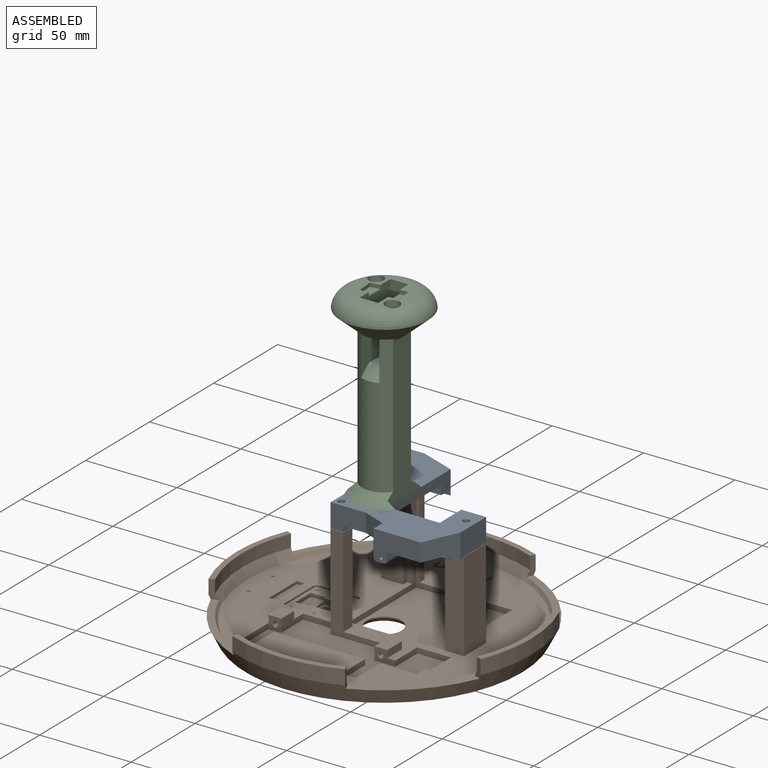
[diagram: assembled view]
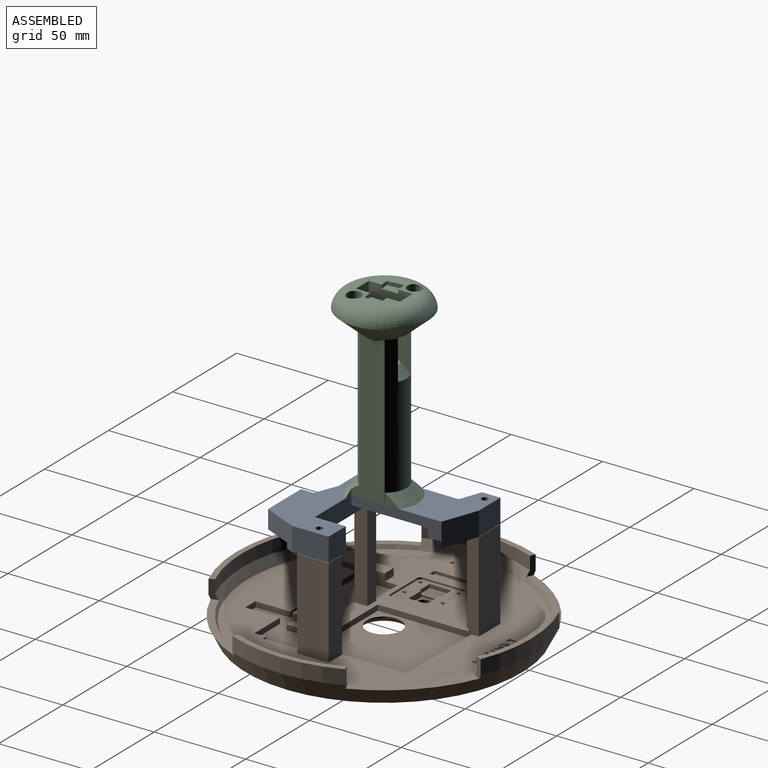
[diagram: assembled view, second angle]
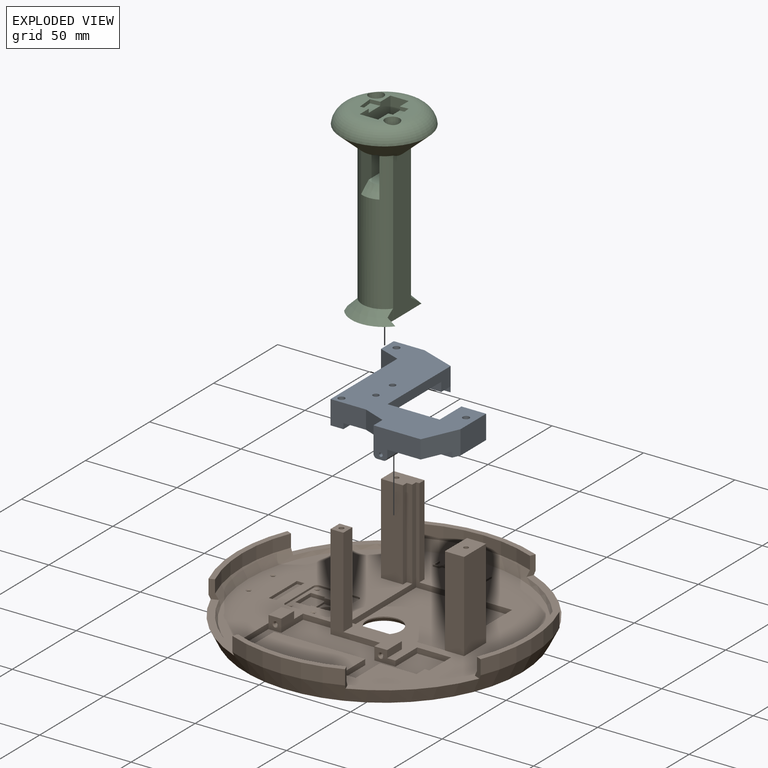
[diagram: exploded view]
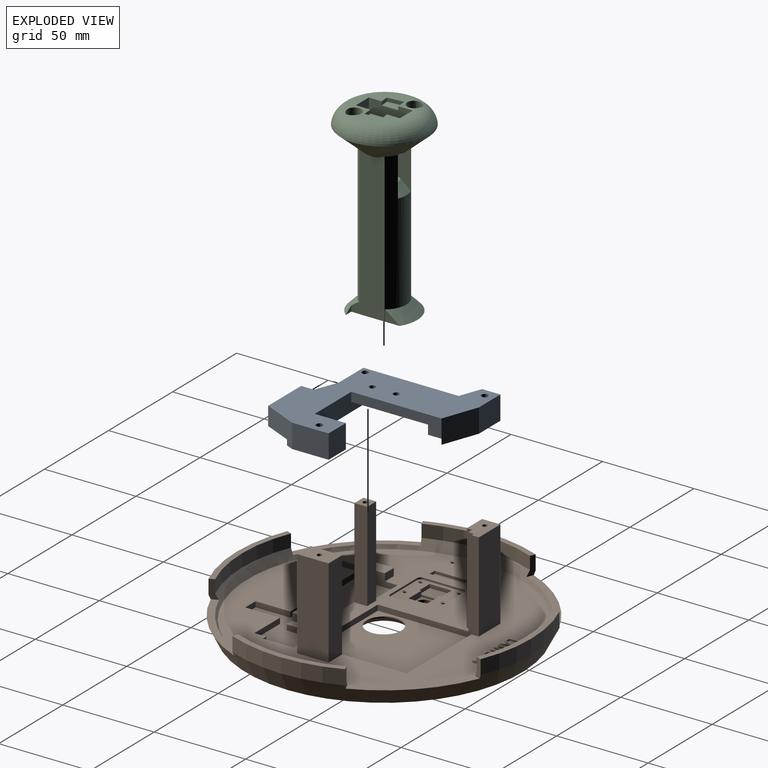
[diagram: exploded view, second angle]
ASSEMBLY  parts=3 mates=2
PART A: 45 faces, bbox 78x78.3x16 mm
  f0: plane 64.21x22mm, normal (0,0,-1), area 784.3mm2, adj f2,f4,f9,f10,f11,f16,f24,f27
  f1: plane 49.3x10mm, normal (1,0,0), area 283.3mm2, adj f2,f18,f23,f33,f35,f36
  f2: plane 28.5x10mm, normal (0,1,0), area 280mm2, adj f0,f1,f24,f33,f35,f38
  f3: plane 2x2mm, normal (0,-1,0), area 3.1mm2, adj f14
  f4: plane 4x3mm, normal (-1,0,0), area 12mm2, adj f0,f9,f10,f17
  f5: plane 3x3mm, normal (1,0,0), area 9mm2, adj f6,f7,f8,f18
  f6: plane 12x3mm, normal (0,-1,0), area 36mm2, adj f5,f7,f18,f21
  f7: plane 36x10mm, normal (0,0,-1), area 210.5mm2, adj f5,f6,f8,f19,f21,f22,f23
  f8: plane 24x3mm, normal (0,-1,0), area 72mm2, adj f5,f7,f18,f23
  f9: plane 8.26x3mm, normal (0,1,0), area 24.8mm2, adj f0,f4,f17,f24
  f10: plane 19.97x3mm, normal (0,-1,0), area 59.9mm2, adj f0,f4,f17,f27
  f11: plane 9x4mm, normal (1,0,0), area 36mm2, adj f0,f12,f16,f28
  f12: cylinder r=2mm len=9mm, axis (0,1,0), area 28.3mm2, adj f11,f13,f16,f28
  f13: plane 9x3.5mm, normal (0,0,-1), area 31.5mm2, adj f12,f15,f16,f28
  f14: cylinder r=1mm len=6mm, axis (0,-1,0), area 37.7mm2, adj f3,f28
  f15: cylinder r=2mm len=9mm, axis (0,-1,0), area 28.3mm2, adj f13,f16,f28,f29
  f16: plane 7.5x6mm, normal (0,1,0), area 43.3mm2, adj f0,f11,f12,f13,f15,f29
  f17: plane 24x21.76mm, normal (0,0,-1), area 343.3mm2, adj f4,f9,f10,f24,f25,f26,f27,f32
  f18: plane 36x7.37mm, normal (0,0,-1), area 203mm2, adj f1,f5,f6,f8,f20,f36
  f19: cylinder r=1.8mm len=13mm, axis (0,0,1), area 147mm2, adj f7,f33
  f20: plane 12x10mm, normal (-0.34,-0.94,0), area 127.7mm2, adj f18,f21,f33,f34,f36
  f21: plane 13x10mm, normal (-1,0,0), area 130mm2, adj f6,f7,f20,f22,f33
  f22: plane 16.77x13mm, normal (0,1,0), area 218mm2, adj f7,f21,f23,f33
  f23: plane 19.23x13mm, normal (0.34,0.94,0), area 266.1mm2, adj f1,f7,f8,f22,f33
  f24: plane 20x13mm, normal (-1,0,0), area 230mm2, adj f0,f2,f9,f17,f25,f33
  f25: plane 13.5x13mm, normal (0,1,0), area 175.5mm2, adj f17,f24,f26,f33
  f26: plane 20x13mm, normal (1,0,0), area 260mm2, adj f17,f25,f27,f33
  f27: plane 19x13mm, normal (0.91,-0.41,0), area 221.3mm2, adj f0,f10,f17,f26,f28,f33
  f28: plane 25.76x16mm, normal (0,-1,0), area 297.8mm2, adj f0,f11,f12,f13,f14,f15,f27,f29
  f29: plane 14x9mm, normal (-1,0,0), area 106mm2, adj f0,f15,f16,f28,f30,f33
  f30: plane 12.39x10mm, normal (-0.36,-0.93,0), area 132.8mm2, adj f0,f29,f31,f33
  f31: plane 19.35x13mm, normal (0,-1,0), area 214.5mm2, adj f0,f30,f33,f34,f39,f41
  f32: cylinder r=1.8mm len=13mm, axis (0,0,1), area 147mm2, adj f17,f33
  f33: plane 78.3x78mm, normal (0,0,1), area 2638.4mm2, adj f1,f2,f19,f20,f21,f22,f23,f24
  f34: plane 52.13x13mm, normal (-1,0,0), area 332.3mm2, adj f0,f20,f31,f33,f35,f37,f40,f41
  f35: plane 42x25mm, normal (0,0,-1), area 991mm2, adj f1,f2,f34,f36,f37,f38,f43,f44
  f36: plane 24x5mm, normal (0,-1,0), area 120mm2, adj f1,f18,f20,f35
  f37: plane 25x5mm, normal (0,1,0), area 125mm2, adj f0,f34,f35,f38
  f38: plane 5x0.07mm, normal (-1,0,0), area 0.3mm2, adj f0,f2,f35,f37
  f39: plane 7x3mm, normal (1,0,0), area 21mm2, adj f0,f31,f40,f41
  f40: plane 7x3mm, normal (0,1,0), area 21mm2, adj f0,f34,f39,f41
  f41: plane 7x7mm, normal (0,0,-1), area 38.8mm2, adj f31,f34,f39,f40,f42
  f42: cylinder r=1.8mm len=13mm, axis (0,0,-1), area 147mm2, adj f33,f41
  f43: cylinder r=1.65mm len=5mm, axis (0,0,1), area 51.8mm2, adj f33,f35
  f44: cylinder r=1.65mm len=5mm, axis (0,0,1), area 51.8mm2, adj f33,f35
PART B: 230 faces, bbox 161x161x55 mm
  f0: cylinder r=80.5mm len=61.61mm, axis (0,0,1), area 505.8mm2, adj f11,f12,f219,f229
  f1: cylinder r=80.5mm len=61.61mm, axis (0,0,1), area 505.8mm2, adj f8,f12,f226,f228
  f2: cylinder r=80.5mm len=61.61mm, axis (0,0,1), area 505.8mm2, adj f9,f12,f223,f225
  f3: cylinder r=80.5mm len=61.61mm, axis (0,0,1), area 505.8mm2, adj f10,f12,f220,f222
  f4: cylinder r=77.5mm len=59.32mm, axis (0,0,-1), area 426.1mm2, adj f8,f13,f226,f228
  f5: cylinder r=77.5mm len=59.32mm, axis (0,0,-1), area 426.1mm2, adj f9,f13,f223,f225
  f6: cylinder r=77.5mm len=59.32mm, axis (0,0,-1), area 426.1mm2, adj f10,f13,f220,f222
  f7: cylinder r=77.5mm len=59.32mm, axis (0,0,-1), area 426.1mm2, adj f11,f13,f219,f229
  f8: plane 61.61x8.9mm, normal (0,0,1), area 186.1mm2, adj f1,f4,f226,f228
  f9: plane 61.61x8.9mm, normal (0,0,1), area 186.1mm2, adj f2,f5,f223,f225
  f10: plane 61.61x8.9mm, normal (0,0,1), area 186.1mm2, adj f3,f6,f220,f222
  f11: plane 61.61x8.9mm, normal (0,0,1), area 186.1mm2, adj f0,f7,f219,f229
  f12: cone r=80.5mm half-angle=26.6deg, axis (0,0,1), area 4917.4mm2, adj f0,f1,f2,f3,f19,f218,f219,f220
  f13: cone r=77.5mm half-angle=31deg, axis (0,0,1), area 1942.5mm2, adj f4,f5,f6,f7,f16,f218,f219,f220
  f14: cylinder r=2.9mm len=5.8mm, axis (0,0,1), area 9.1mm2, adj f19,f217
  f15: plane 26x25mm, normal (0,0,1), area 426.8mm2, adj f171,f172,f173,f174,f175,f176,f177,f178
  f16: plane 149x149mm, normal (0,0,1), area 11513.9mm2, adj f13,f20,f21,f22,f23,f24,f25,f26
  f17: plane 52.5x52.5mm, normal (0,0,1), area 2472.7mm2, adj f18,f39,f40,f41,f43
  f18: cylinder r=9.5mm len=19mm, axis (0,0,1), area 36.8mm2, adj f17,f51
  f19: plane 151x151mm, normal (0,0,-1), area 17466mm2, adj f12,f14,f51
  f20: plane 18.5x3mm, normal (0,-1,0), area 55.5mm2, adj f16,f21,f42,f44
  f21: plane 17x3mm, normal (-1,0,0), area 51mm2, adj f16,f20,f22,f44
  f22: plane 3x2.5mm, normal (0,1,0), area 7.5mm2, adj f16,f21,f23,f44
  f23: plane 6.4x3mm, normal (-1,0,0), area 19.2mm2, adj f16,f22,f24,f44
  f24: plane 20x3mm, normal (0,1,0), area 60mm2, adj f16,f23,f25,f44
  f25: plane 19x3mm, normal (-1,0,0), area 57mm2, adj f16,f24,f26,f44
  f26: plane 8x3mm, normal (0,1,0), area 24mm2, adj f16,f25,f27,f44
  f27: plane 19x3mm, normal (1,0,0), area 57mm2, adj f16,f26,f28,f44
  f28: plane 50x3mm, normal (0,1,0), area 150mm2, adj f16,f27,f29,f44
  f29: plane 19x3mm, normal (-1,0,0), area 57mm2, adj f16,f28,f30,f44
  f30: plane 7.4x3mm, normal (0,1,0), area 22.2mm2, adj f16,f29,f31,f44
  f31: plane 25.4x3mm, normal (1,0,0), area 76.2mm2, adj f16,f30,f32,f44
  f32: plane 7x7mm, normal (0,-1,0), area 41.9mm2, adj f31,f33,f44,f46,f47,f199
  f33: plane 17x7mm, normal (1,0,0), area 91mm2, adj f16,f32,f34,f44,f45,f47
  f34: plane 18.9x3mm, normal (0,-1,0), area 56.7mm2, adj f16,f33,f35,f44
  f35: plane 52x7mm, normal (-1,0,0), area 359.5mm2, adj f16,f34,f36,f44,f200,f202
  f36: plane 52x32mm, normal (0,-1,0), area 439mm2, adj f16,f35,f37,f44,f201,f202
  f37: plane 11.5x7mm, normal (-1,0,0), area 80.5mm2, adj f36,f38,f44,f48,f50
  f38: plane 11.5x7mm, normal (0,-1,0), area 55.4mm2, adj f16,f37,f42,f44,f49,f50,f198
  f39: plane 52.5x52mm, normal (1,0,0), area 304.5mm2, adj f16,f17,f40,f43,f157,f162
  f40: plane 52.5x52mm, normal (0,-1,0), area 244.1mm2, adj f16,f17,f39,f41,f158,f162
  f41: plane 52.5x52mm, normal (-1,0,0), area 1000.3mm2, adj f16,f17,f40,f43,f164,f165,f166
  f42: plane 17x3mm, normal (1,0,0), area 51mm2, adj f16,f20,f38,f44
  f43: plane 52.5x3mm, normal (0,1,0), area 157.5mm2, adj f16,f17,f39,f41
  f44: plane 87.9x42.4mm, normal (0,0,1), area 1843mm2, adj f20,f21,f22,f23,f24,f25,f26,f27
  f45: plane 7x4mm, normal (0,1,0), area 28mm2, adj f16,f33,f46,f47
  f46: plane 10x4mm, normal (-1,0,0), area 40mm2, adj f16,f32,f45,f47
  f47: plane 10x7mm, normal (0,0,1), area 70mm2, adj f32,f33,f45,f46
  f48: plane 7x4mm, normal (0,1,0), area 28mm2, adj f16,f37,f49,f50
  f49: plane 11.5x4mm, normal (1,0,0), area 46mm2, adj f16,f38,f48,f50
  f50: plane 11.5x7mm, normal (0,0,1), area 80.5mm2, adj f37,f38,f48,f49
  f51: cone r=11.5mm half-angle=40deg, axis (0,0,-1), area 205.3mm2, adj f18,f19
  f52: cylinder r=1mm len=4.5mm, axis (0,-1,0), area 28.3mm2, adj f53,f198
  f53: plane 2x2mm, normal (0,-1,0), area 3.1mm2, adj f52
  f54: cylinder r=1mm len=4.5mm, axis (0,-1,0), area 28.3mm2, adj f55,f199
  f55: plane 2x2mm, normal (0,-1,0), area 3.1mm2, adj f54
  f56: cylinder r=0.88mm len=3.5mm, axis (0,0,1), area 19.2mm2, adj f57,f196
  f57: plane 1.75x1.75mm, normal (0,0,1), area 2.4mm2, adj f56
  f58: cylinder r=0.88mm len=3.5mm, axis (0,0,1), area 19.2mm2, adj f59,f197
  f59: plane 1.75x1.75mm, normal (0,0,1), area 2.4mm2, adj f58
  f60: plane 4.92x1mm, normal (-1,0,0), area 4.9mm2, adj f16,f61,f65,f66
  f61: plane 2.74x1mm, normal (0,-1,0), area 2.7mm2, adj f16,f60,f62,f66
  f62: plane 1x0.52mm, normal (1,0,0), area 0.5mm2, adj f16,f61,f63,f66
  f63: plane 2.17x1mm, normal (0,1,0), area 2.2mm2, adj f16,f62,f64,f66
  f64: plane 4.4x1mm, normal (1,0,0), area 4.4mm2, adj f16,f63,f65,f66
  f65: plane 1x0.57mm, normal (0,1,0), area 0.6mm2, adj f16,f60,f64,f66
  f66: plane 4.92x2.74mm, normal (0,0,1), area 3.9mm2, adj f60,f61,f62,f63,f64,f65
  f67: plane 1.52x1mm, normal (-0.94,-0.35,0), area 1.6mm2, adj f68,f79,f80,f81
  f68: plane 1.59x1mm, normal (0,1,0), area 1.6mm2, adj f67,f69,f80,f81
  f69: plane 1.52x1mm, normal (0.94,-0.35,0), area 1.6mm2, adj f68,f70,f80,f81
  f70: extruded ~1x0.71mm, area 0.7mm2, adj f69,f79,f80,f81
  f71: plane 1.56x1mm, normal (-0.93,-0.36,0), area 1.7mm2, adj f16,f72,f78,f80
  f72: plane 1x0.59mm, normal (0,-1,0), area 0.6mm2, adj f16,f71,f73,f80
  f73: plane 4.94x1.93mm, normal (0.93,0.36,0), area 5.3mm2, adj f16,f72,f74,f80
  f74: plane 1x0.48mm, normal (0,1,0), area 0.5mm2, adj f16,f73,f75,f80
  f75: plane 4.94x1.94mm, normal (-0.93,0.37,0), area 5.3mm2, adj f16,f74,f76,f80
  f76: plane 1x0.58mm, normal (0,-1,0), area 0.6mm2, adj f16,f75,f77,f80
  f77: plane 1.56x1mm, normal (0.93,-0.36,0), area 1.7mm2, adj f16,f76,f78,f80
  f78: plane 1.97x1mm, normal (0,-1,0), area 2mm2, adj f16,f71,f77,f80
  f79: extruded ~1x0.71mm, area 0.7mm2, adj f67,f70,f80,f81
  f80: plane 4.94x4.36mm, normal (0,0,1), area 6.2mm2, adj f67,f68,f69,f70,f71,f72,f73,f74
  f81: plane 2.23x1.59mm, normal (0,0,1), area 1.7mm2, adj f67,f68,f69,f70,f79
  f82: plane 1x0.65mm, normal (0,-1,0), area 0.7mm2, adj f16,f83,f96,f97
  f83: plane 4.92x1mm, normal (1,0,0), area 4.9mm2, adj f16,f82,f84,f97
  f84: plane 1x0.54mm, normal (0,1,0), area 0.5mm2, adj f16,f83,f85,f97
  f85: plane 2.82x1mm, normal (-1,0,0), area 2.8mm2, adj f16,f84,f86,f97
  f86: extruded ~1x0.71mm, area 0.7mm2, adj f16,f85,f87,f97
  f87: extruded ~1x0.58mm, area 0.6mm2, adj f16,f86,f88,f97
  f88: plane 1x0.03mm, normal (0,1,0), area 0mm2, adj f16,f87,f89,f97
  f89: plane 4.11x2.68mm, normal (0.84,0.55,0), area 4.9mm2, adj f16,f88,f90,f97
  f90: plane 1x0.65mm, normal (0,1,0), area 0.6mm2, adj f16,f89,f91,f97
  f91: plane 4.92x1mm, normal (-1,0,0), area 4.9mm2, adj f16,f90,f92,f97
  f92: plane 1x0.53mm, normal (0,-1,0), area 0.5mm2, adj f16,f91,f93,f97
  f93: plane 2.8x1mm, normal (1,0,0), area 2.8mm2, adj f16,f92,f94,f97
  f94: extruded ~1.33x1mm, area 1.3mm2, adj f16,f93,f95,f97
  f95: plane 1x0.03mm, normal (0,-1,0), area 0mm2, adj f16,f94,f96,f97
  f96: plane 4.13x2.69mm, normal (-0.84,-0.55,0), area 4.9mm2, adj f16,f82,f95,f97
  f97: plane 4.92x3.84mm, normal (0,0,1), area 8mm2, adj f82,f83,f84,f85,f86,f87,f88,f89
  f98: plane 1x0.57mm, normal (0,-1,0), area 0.6mm2, adj f16,f99,f105,f106
  f99: plane 4.41x1mm, normal (1,0,0), area 4.4mm2, adj f16,f98,f100,f106
  f100: plane 1.56x1mm, normal (0,-1,0), area 1.6mm2, adj f16,f99,f101,f106
  f101: plane 1x0.51mm, normal (1,0,0), area 0.5mm2, adj f16,f100,f102,f106
  f102: plane 3.69x1mm, normal (0,1,0), area 3.7mm2, adj f16,f101,f103,f106
  f103: plane 1x0.51mm, normal (-1,0,0), area 0.5mm2, adj f16,f102,f104,f106
  f104: plane 1.56x1mm, normal (0,-1,0), area 1.6mm2, adj f16,f103,f105,f106
  f105: plane 4.41x1mm, normal (-1,0,0), area 4.4mm2, adj f16,f98,f104,f106
  f106: plane 4.92x3.69mm, normal (0,0,1), area 4.4mm2, adj f98,f99,f100,f101,f102,f103,f104,f105
  f107: plane 2.74x1mm, normal (0,-1,0), area 2.7mm2, adj f16,f108,f118,f119
  f108: plane 1x0.51mm, normal (1,0,0), area 0.5mm2, adj f16,f107,f109,f119
  f109: plane 2.17x1mm, normal (0,1,0), area 2.2mm2, adj f16,f108,f110,f119
  f110: plane 1.81x1mm, normal (1,0,0), area 1.8mm2, adj f16,f109,f111,f119
  f111: plane 2.04x1mm, normal (0,-1,0), area 2mm2, adj f16,f110,f112,f119
  f112: plane 1x0.51mm, normal (1,0,0), area 0.5mm2, adj f16,f111,f113,f119
  f113: plane 2.04x1mm, normal (0,1,0), area 2mm2, adj f16,f112,f114,f119
  f114: plane 1.58x1mm, normal (1,0,0), area 1.6mm2, adj f16,f113,f115,f119
  f115: plane 2.17x1mm, normal (0,-1,0), area 2.2mm2, adj f16,f114,f116,f119
  f116: plane 1x0.51mm, normal (1,0,0), area 0.5mm2, adj f16,f115,f117,f119
  f117: plane 2.74x1mm, normal (0,1,0), area 2.7mm2, adj f16,f116,f118,f119
  f118: plane 4.92x1mm, normal (-1,0,0), area 4.9mm2, adj f16,f107,f117,f119
  f119: plane 4.92x2.74mm, normal (0,0,1), area 6.1mm2, adj f107,f108,f109,f110,f111,f112,f113,f114
  f120: plane 1x0.79mm, normal (0,1,0), area 0.8mm2, adj f121,f137,f138,f139
  f121: plane 1.88x1mm, normal (1,0,0), area 1.9mm2, adj f120,f122,f138,f139
  f122: plane 1x0.74mm, normal (0,-1,0), area 0.7mm2, adj f121,f123,f138,f139
  f123: extruded ~1x0.92mm, area 1mm2, adj f122,f124,f138,f139
  f124: extruded ~1x0.7mm, area 0.8mm2, adj f123,f125,f138,f139
  f125: extruded ~1x0.72mm, area 0.8mm2, adj f124,f137,f138,f139
  f126: plane 2.05x1mm, normal (1,0,0), area 2mm2, adj f16,f127,f136,f138
  f127: plane 1.03x1mm, normal (0,-1,0), area 1mm2, adj f16,f126,f128,f138
  f128: plane 2.05x1.19mm, normal (-0.86,-0.5,0), area 2.4mm2, adj f16,f127,f129,f138
  f129: plane 1x0.68mm, normal (0,-1,0), area 0.7mm2, adj f16,f128,f130,f138
  f130: plane 2.21x1.34mm, normal (0.86,0.52,0), area 2.6mm2, adj f16,f129,f131,f138
  f131: extruded ~1.32x1mm, area 1.8mm2, adj f16,f130,f132,f138
  f132: extruded ~1.04x1mm, area 1.2mm2, adj f16,f131,f133,f138
  f133: extruded ~1.34x1mm, area 1.4mm2, adj f16,f132,f134,f138
  f134: plane 1.35x1mm, normal (0,1,0), area 1.3mm2, adj f16,f133,f135,f138
  f135: plane 4.92x1mm, normal (-1,0,0), area 4.9mm2, adj f16,f134,f136,f138
  f136: plane 1x0.57mm, normal (0,-1,0), area 0.6mm2, adj f16,f126,f135,f138
  f137: extruded ~1x0.89mm, area 0.9mm2, adj f120,f125,f138,f139
  f138: plane 4.92x3.47mm, normal (0,0,1), area 7.3mm2, adj f120,f121,f122,f123,f124,f125,f126,f127
  f139: plane 1.96x1.88mm, normal (0,0,1), area 3.3mm2, adj f120,f121,f122,f123,f124,f125,f137
  f140: plane 1x0.65mm, normal (0,-1,0), area 0.7mm2, adj f16,f141,f154,f155
  f141: plane 4.92x1mm, normal (1,0,0), area 4.9mm2, adj f16,f140,f142,f155
  f142: plane 1x0.54mm, normal (0,1,0), area 0.5mm2, adj f16,f141,f143,f155
  f143: plane 2.82x1mm, normal (-1,0,0), area 2.8mm2, adj f16,f142,f144,f155
  f144: extruded ~1x0.71mm, area 0.7mm2, adj f16,f143,f145,f155
  f145: extruded ~1x0.58mm, area 0.6mm2, adj f16,f144,f146,f155
  f146: plane 1x0.03mm, normal (0,1,0), area 0mm2, adj f16,f145,f147,f155
  f147: plane 4.11x2.68mm, normal (0.84,0.55,0), area 4.9mm2, adj f16,f146,f148,f155
  f148: plane 1x0.65mm, normal (0,1,0), area 0.6mm2, adj f16,f147,f149,f155
  f149: plane 4.92x1mm, normal (-1,0,0), area 4.9mm2, adj f16,f148,f150,f155
  f150: plane 1x0.53mm, normal (0,-1,0), area 0.5mm2, adj f16,f149,f151,f155
  f151: plane 2.8x1mm, normal (1,0,0), area 2.8mm2, adj f16,f150,f152,f155
  f152: extruded ~1.33x1mm, area 1.3mm2, adj f16,f151,f153,f155
  f153: plane 1x0.03mm, normal (0,-1,0), area 0mm2, adj f16,f152,f154,f155
  f154: plane 4.13x2.69mm, normal (-0.84,-0.55,0), area 4.9mm2, adj f16,f140,f153,f155
  f155: plane 4.92x3.84mm, normal (0,0,1), area 8mm2, adj f140,f141,f142,f143,f144,f145,f146,f147
  f156: plane 49x3mm, normal (1,0,0), area 147mm2, adj f16,f157,f161,f162
  f157: plane 49x3mm, normal (0,-1,0), area 147mm2, adj f16,f39,f156,f162
  f158: plane 49x4mm, normal (1,0,0), area 196mm2, adj f16,f40,f159,f162
  f159: plane 49x16.77mm, normal (0,1,0), area 821.6mm2, adj f16,f158,f160,f162
  f160: plane 49x10mm, normal (-1,0,0), area 490mm2, adj f16,f159,f161,f162
  f161: plane 49x12mm, normal (0,-1,0), area 588mm2, adj f16,f156,f160,f162
  f162: plane 16.77x10mm, normal (0,0,1), area 142.8mm2, adj f39,f40,f156,f157,f158,f159,f160,f161
  f163: plane 49x17.2mm, normal (1,0,0), area 842.8mm2, adj f16,f164,f165,f166
  f164: plane 49x10.5mm, normal (0,1,0), area 514.5mm2, adj f16,f41,f163,f166
  f165: plane 49x10.5mm, normal (0,-1,0), area 514.5mm2, adj f16,f41,f163,f166
  f166: plane 17.2x10.5mm, normal (0,0,1), area 175.3mm2, adj f41,f163,f164,f165,f169
  f167: cylinder r=1.3mm len=20mm, axis (0,0,1), area 163.4mm2, adj f162,f168
  f168: plane 2.6x2.6mm, normal (0,0,1), area 5.3mm2, adj f167
  f169: cylinder r=1.3mm len=20mm, axis (0,0,1), area 163.4mm2, adj f166,f170
  f170: plane 2.6x2.6mm, normal (0,0,1), area 5.3mm2, adj f169
  f171: plane 21x1mm, normal (0,-1,0), area 21mm2, adj f15,f16,f172,f178
  f172: cylinder r=2mm len=2mm, axis (0,0,1), area 3.1mm2, adj f15,f16,f171,f173
  f173: plane 22x1mm, normal (1,0,0), area 22mm2, adj f15,f16,f172,f174
  f174: cylinder r=2mm len=2mm, axis (0,0,1), area 3.1mm2, adj f15,f16,f173,f175
  f175: plane 21x1mm, normal (0,1,0), area 21mm2, adj f15,f16,f174,f176
  f176: cylinder r=2mm len=2mm, axis (0,0,1), area 3.1mm2, adj f15,f16,f175,f177
  f177: plane 22x1mm, normal (-1,0,0), area 22mm2, adj f15,f16,f176,f178
  f178: cylinder r=2mm len=2mm, axis (0,0,1), area 3.1mm2, adj f15,f16,f171,f177
  f179: cylinder r=0.88mm len=3.5mm, axis (0,0,1), area 19.2mm2, adj f180,f194
  f180: plane 1.75x1.75mm, normal (0,0,1), area 2.4mm2, adj f179
  f181: cylinder r=0.88mm len=3.5mm, axis (0,0,1), area 19.2mm2, adj f182,f195
  f182: plane 1.75x1.75mm, normal (0,0,1), area 2.4mm2, adj f181
  f183: cylinder r=0.88mm len=3.5mm, axis (0,0,1), area 19.2mm2, adj f184,f192
  f184: plane 1.75x1.75mm, normal (0,0,1), area 2.4mm2, adj f183
  f185: cylinder r=0.88mm len=3.5mm, axis (0,0,1), area 19.2mm2, adj f186,f193
  f186: plane 1.75x1.75mm, normal (0,0,1), area 2.4mm2, adj f185
  f187: plane 10x3mm, normal (0,-1,0), area 30mm2, adj f15,f188,f190,f191,f210
  f188: plane 10x1mm, normal (1,0,0), area 10mm2, adj f187,f189,f191,f215
  f189: plane 10x3mm, normal (0,1,0), area 30mm2, adj f15,f188,f190,f191,f211
  f190: plane 10x3mm, normal (-1,0,0), area 30mm2, adj f15,f187,f189,f191
  f191: plane 10x10mm, normal (0,0,1), area 52.8mm2, adj f187,f188,f189,f190,f216
  f192: cone r=0.88mm half-angle=45deg, axis (0,0,1), area 5mm2, adj f15,f183
  f193: cone r=0.88mm half-angle=45deg, axis (0,0,1), area 5mm2, adj f15,f185
  f194: cone r=0.88mm half-angle=45deg, axis (0,0,1), area 5mm2, adj f15,f179
  f195: cone r=0.88mm half-angle=45deg, axis (0,0,1), area 5mm2, adj f15,f181
  f196: cone r=0.88mm half-angle=45deg, axis (0,0,1), area 5mm2, adj f16,f56
  f197: cone r=0.88mm half-angle=45deg, axis (0,0,1), area 5mm2, adj f16,f58
  f198: cone r=1mm half-angle=45deg, axis (0,-1,0), area 5.6mm2, adj f38,f52
  f199: cone r=1mm half-angle=45deg, axis (0,-1,0), area 5.6mm2, adj f32,f54
  f200: plane 49x7mm, normal (0,1,0), area 343mm2, adj f16,f35,f201,f202
  f201: plane 49x7mm, normal (1,0,0), area 343mm2, adj f16,f36,f200,f202
  f202: plane 7x7mm, normal (0,0,1), area 43.7mm2, adj f35,f36,f200,f201,f203
  f203: cylinder r=1.3mm len=20mm, axis (0,0,1), area 163.4mm2, adj f202,f204
  f204: plane 2.6x2.6mm, normal (0,0,1), area 5.3mm2, adj f203
  f205: plane 4x1.5mm, normal (0,-1,0), area 6mm2, adj f16,f206,f208,f209
  f206: plane 22x1.5mm, normal (1,0,0), area 33mm2, adj f16,f205,f207,f209
  f207: plane 4x1.5mm, normal (0,1,0), area 6mm2, adj f16,f206,f208,f209
  f208: plane 22x1.5mm, normal (-1,0,0), area 33mm2, adj f16,f205,f207,f209
  f209: plane 22x4mm, normal (0,0,1), area 88mm2, adj f205,f206,f207,f208
  f210: plane 2x1mm, normal (-1,0,0), area 2mm2, adj f15,f187,f212,f215
  f211: plane 2x1mm, normal (-1,0,0), area 2mm2, adj f15,f189,f214,f215
  f212: plane 8x2mm, normal (0,-1,0), area 16mm2, adj f15,f210,f213,f215
  f213: plane 12x2mm, normal (1,0,0), area 24mm2, adj f15,f212,f214,f215
  f214: plane 8x2mm, normal (0,1,0), area 16mm2, adj f15,f211,f213,f215
  f215: plane 12x8mm, normal (0,0,1), area 96mm2, adj f188,f210,f211,f212,f213,f214
  f216: cylinder r=3.88mm len=7.75mm, axis (0,0,1), area 36.5mm2, adj f191,f217
  f217: plane 7.75x7.75mm, normal (0,0,1), area 20.8mm2, adj f14,f216
  f218: plane 44.48x44.48mm, normal (0,0,1), area 231.6mm2, adj f12,f13,f219,f220
  f219: plane 10x4.43mm, normal (0.38,0.92,0), area 31.7mm2, adj f0,f7,f11,f12,f13,f218
  f220: plane 10x4.43mm, normal (-0.92,-0.38,0), area 31.7mm2, adj f3,f6,f10,f12,f13,f218
  f221: plane 44.48x44.48mm, normal (0,0,1), area 231.6mm2, adj f12,f13,f222,f223
  f222: plane 10x4.43mm, normal (0.92,-0.38,0), area 31.7mm2, adj f3,f6,f10,f12,f13,f221
  f223: plane 10x4.43mm, normal (-0.38,0.92,0), area 31.7mm2, adj f2,f5,f9,f12,f13,f221
  f224: plane 44.48x44.48mm, normal (0,0,1), area 231.6mm2, adj f12,f13,f225,f226
  f225: plane 10x4.43mm, normal (-0.38,-0.92,0), area 31.7mm2, adj f2,f5,f9,f12,f13,f224
  f226: plane 10x4.43mm, normal (0.92,0.38,0), area 31.7mm2, adj f1,f4,f8,f12,f13,f224
  f227: plane 44.48x44.48mm, normal (0,0,1), area 231.6mm2, adj f12,f13,f228,f229
  f228: plane 10x4.43mm, normal (-0.92,0.38,0), area 31.7mm2, adj f1,f4,f8,f12,f13,f227
  f229: plane 10x4.43mm, normal (0.38,-0.92,0), area 31.7mm2, adj f0,f7,f11,f12,f13,f227
PART C: 40 faces, bbox 52.3x52.3x100.4 mm
  f0: plane 30x30mm, normal (0,0,1), area 313.8mm2, adj f1,f14,f15,f16,f19,f21,f23,f32
  f1: plane 40.02x24.02mm, normal (1,0,0), area 813.7mm2, adj f0,f4,f5,f13,f15,f16,f17,f18
  f2: plane 8.1x6mm, normal (1,0,0), area 25.6mm2, adj f4,f12,f25
  f3: plane 5.96x0.45mm, normal (0,0,-1), area 1.8mm2, adj f8,f24
  f4: cylinder r=12mm len=81.57mm, axis (0,0,-1), area 1498.2mm2, adj f1,f2,f7,f8,f12,f14,f17,f24
  f5: cylinder r=12mm len=81.57mm, axis (0,0,-1), area 1498.2mm2, adj f1,f7,f8,f9,f12,f14,f18,f24
  f6: plane 5.96x0.45mm, normal (0,0,-1), area 1.8mm2, adj f7,f24
  f7: plane 75.57x13.99mm, normal (-1,0,0), area 1041mm2, adj f4,f5,f6,f24,f27
  f8: plane 81.57x13.99mm, normal (1,0,0), area 1124.9mm2, adj f3,f4,f5,f12,f24
  f9: plane 6x4.24mm, normal (1,0,0), area 19.5mm2, adj f5,f11,f12,f26
  f10: plane 22x1.59mm, normal (-1,0,0), area 28mm2, adj f12,f25,f26,f27
  f11: plane 4.66x3.46mm, normal (0,1,0), area 6.9mm2, adj f9,f12,f26
  f12: plane 36x28.31mm, normal (0,0,-1), area 781.1mm2, adj f2,f4,f5,f8,f9,f10,f11,f25
  f13: plane 14x10mm, normal (0,0,1), area 127mm2, adj f1,f14,f17,f18
  f14: plane 40.02x24.02mm, normal (-1,0,0), area 813.7mm2, adj f0,f4,f5,f13,f15,f16,f17,f18
  f15: plane 18.44x10mm, normal (0,1,0), area 181.4mm2, adj f0,f1,f14,f24
  f16: plane 18.44x10mm, normal (0,-1,0), area 181.4mm2, adj f0,f1,f14,f24
  f17: cone r=7mm half-angle=45deg, axis (0,0,-1), area 74.9mm2, adj f1,f4,f13,f14
  f18: cone r=7mm half-angle=45deg, axis (0,0,-1), area 74.9mm2, adj f1,f5,f13,f14
  f19: cone r=4mm half-angle=1.5deg, axis (0,0,1), area 309.8mm2, adj f0,f20,f23
  f20: plane 7.32x7.32mm, normal (0,0,1), area 42.1mm2, adj f19
  f21: cone r=4mm half-angle=1.5deg, axis (0,0,1), area 309.9mm2, adj f0,f22,f23
  f22: plane 7.32x7.32mm, normal (0,0,1), area 42.1mm2, adj f21
  f23: torus R=15mm, axis (0,0,1), area 1659.5mm2, adj f0,f19,f21,f24
  f24: cone r=24mm half-angle=49deg, axis (0,0,1), area 1830.7mm2, adj f1,f3,f4,f5,f6,f7,f8,f14
  f25: cone r=12mm half-angle=45deg, axis (0,0,-1), area 216.5mm2, adj f2,f4,f10,f12,f27
  f26: cone r=12mm half-angle=45deg, axis (0,0,-1), area 228.9mm2, adj f5,f9,f10,f11,f12,f27
  f27: plane 16.83x4.72mm, normal (-0.71,0,0.71), area 98.9mm2, adj f7,f10,f25,f26
  f28: cylinder r=1.5mm len=25mm, axis (0,0,-1), area 235.6mm2, adj f12,f29
  f29: plane 3x3mm, normal (0,0,-1), area 7.1mm2, adj f28
  f30: cylinder r=1.5mm len=25mm, axis (0,0,-1), area 235.6mm2, adj f12,f31
  f31: plane 3x3mm, normal (0,0,-1), area 7.1mm2, adj f30
  f32: plane 4.57x2mm, normal (0.09,-1,0), area 9.2mm2, adj f0,f14,f34,f35
  f33: plane 5.35x2mm, normal (-0.09,1,0), area 10.7mm2, adj f0,f14,f34,f35
  f34: plane 8.97x2mm, normal (-1,-0.09,0), area 18mm2, adj f0,f32,f33,f35
  f35: plane 9.43x5.35mm, normal (0,0,1), area 44.8mm2, adj f14,f32,f33,f34
  f36: plane 5.35x2mm, normal (0.09,-1,0), area 10.7mm2, adj f0,f1,f37,f39
  f37: plane 8.97x2mm, normal (1,0.09,0), area 18mm2, adj f0,f36,f38,f39
  f38: plane 4.57x2mm, normal (-0.09,1,0), area 9.2mm2, adj f0,f1,f37,f39
  f39: plane 9.43x5.35mm, normal (0,0,1), area 44.8mm2, adj f1,f36,f37,f38
PLACE A t=(-13.9,-3.89,59.7)mm
PLACE B t=(-13.9,-4.09,4.5)mm
PLACE C t=(-13.9,-3.89,59.7)mm
MATE parallel A.f7 <-> B.f162  axis (0,0,1) through (-23.44,41.11,56.7)mm
MATE fastened C.f30 <-> A.f44  axis (0,0,-1) through (-13.9,-10.39,69.7)mm
